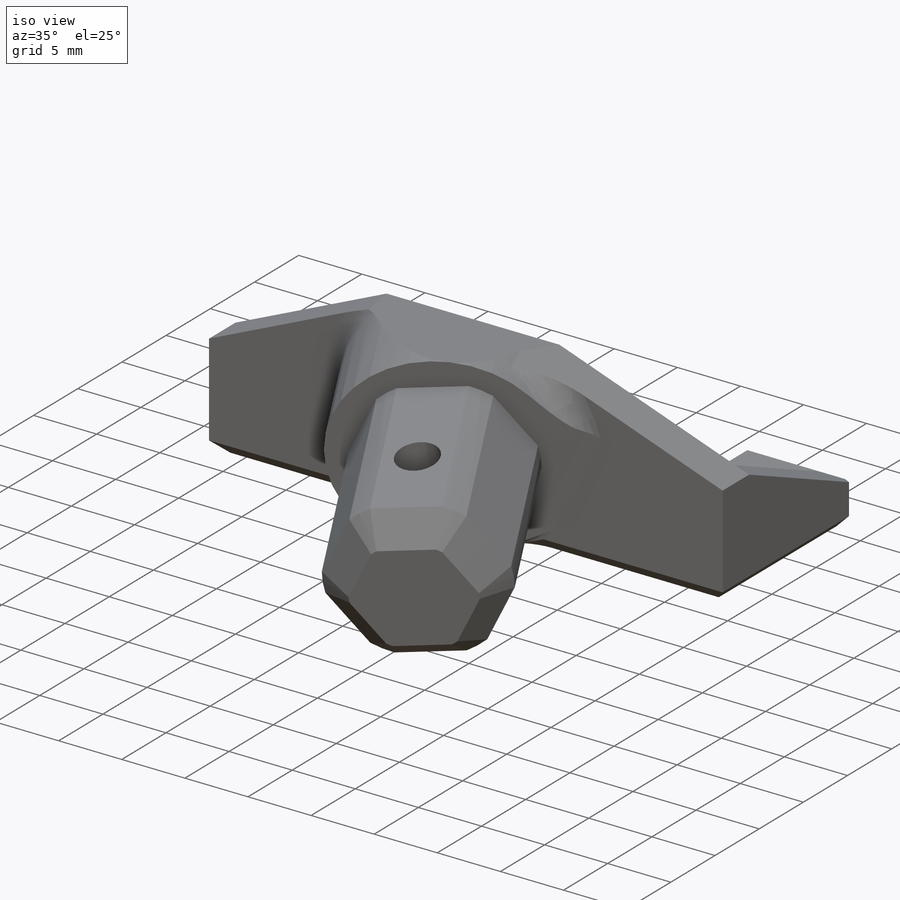
[diagram: iso view]
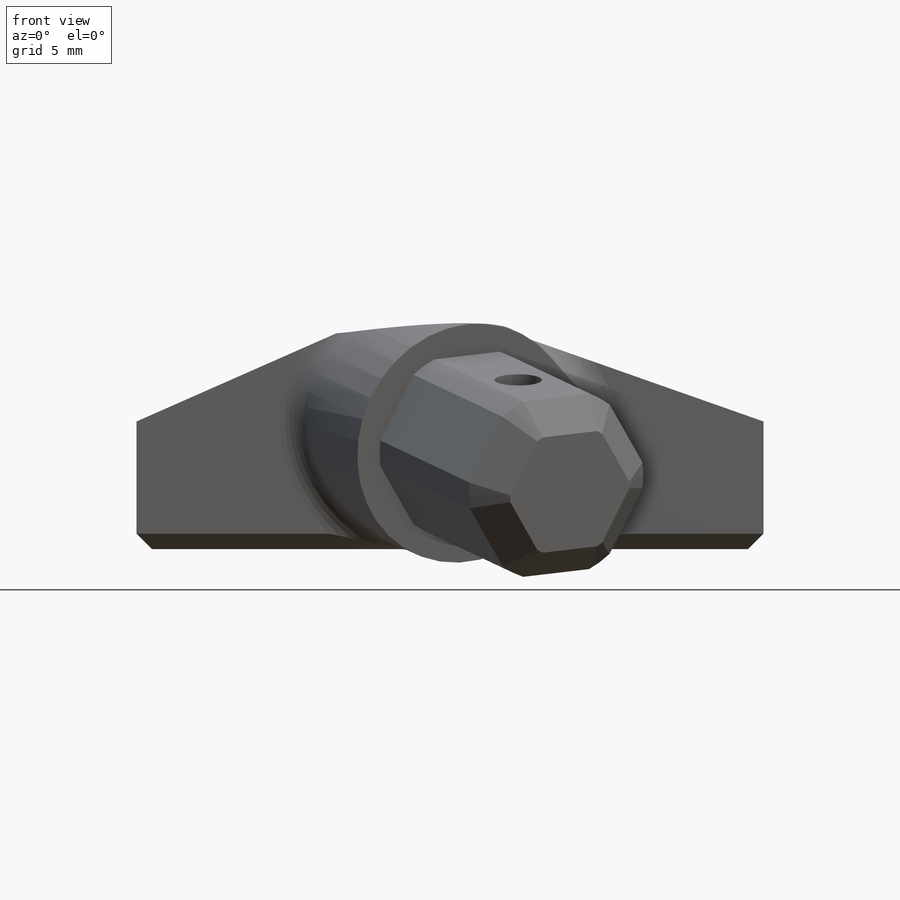
[diagram: front view]
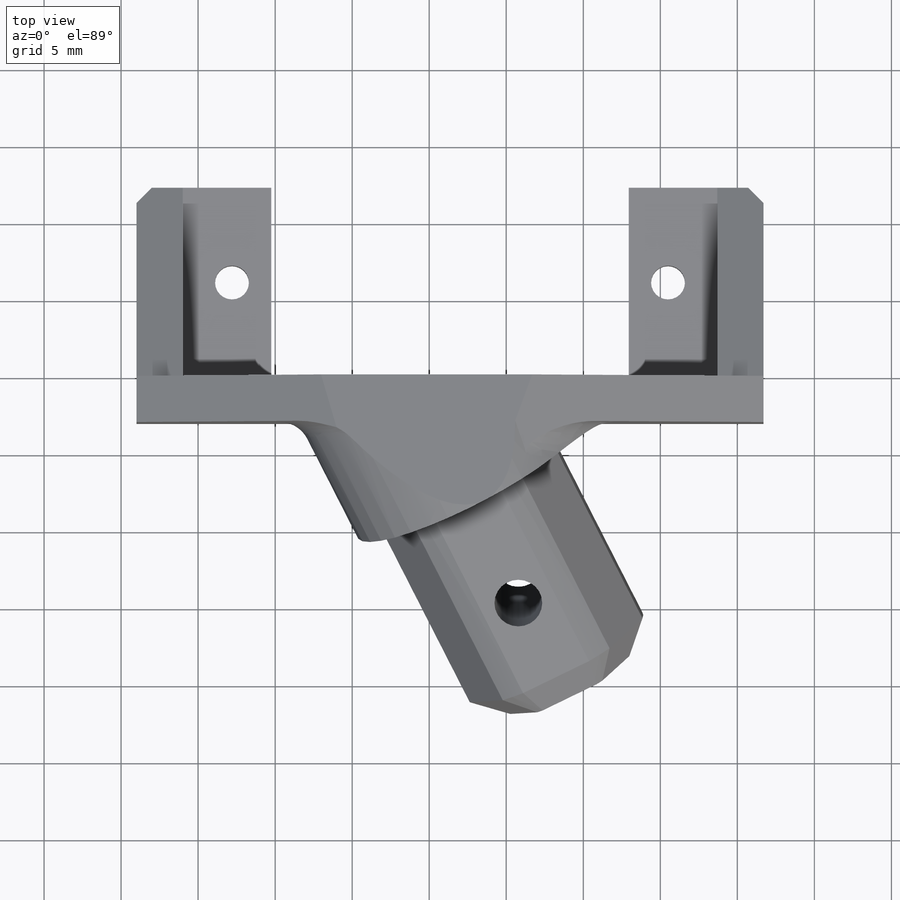
[diagram: top view]
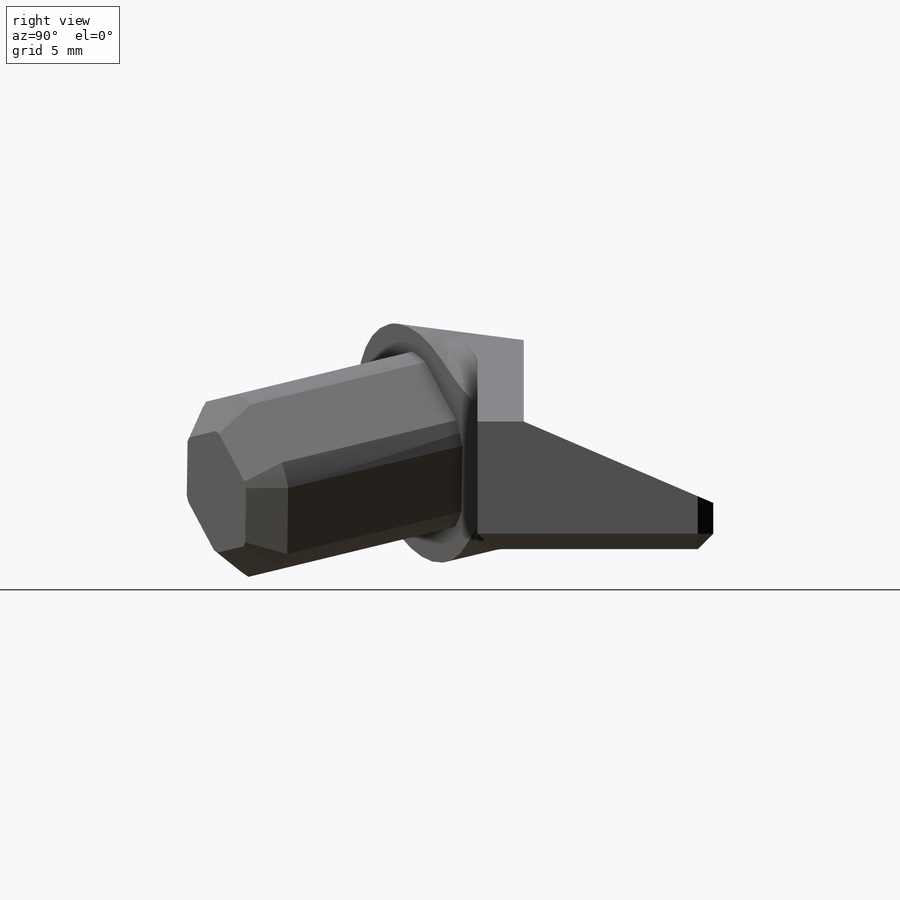
[diagram: right view]
SOLIDWORKS PART (.sldprt)
format: sldprt  version: not decoded by parser v0  size: 439,808 bytes
history: native  units: mm
features: sketch x11, extrude x7, cut_extrude x4, fillet x3, chamfer x2, material x1, plane x1 (+13 scaffold rows collapsed)
feature tree (42):
  scaffold x13  (default folders/planes/origin — collapsed)
  material  "Material <not specified>"
  sketch  "Sketch1"  dims[D2=3.0mm D3=4.0mm D4=4.0mm D5=~2.134115mm D1=0.0mm]
  extrude  "Boss-Extrude1"  Depth=3mm
  plane  "Plane1"
  sketch  "Sketch3"  dims[D1=15.88mm]
  extrude  "Boss-Extrude3"  Depth=15mm
  sketch  "Sketch5"  dims[D1=13.568mm]
  cut_extrude  "Cut-Extrude1"  [1 undecoded]
  sketch  "Sketch6"  dims[D1=~1.163325mm]
  extrude  "Boss-Extrude4"  [1 undecoded]
  sketch  "Sketch2"  dims[D1=~1.819306mm]
  extrude  "Boss-Extrude2"  [1 undecoded]
  sketch  "Sketch7"  dims[D1=12.3mm]
  extrude  "Boss-Extrude5"  Depth=3mm
  sketch  "Sketch8"  dims[D1=12.3mm]
  extrude  "Boss-Extrude6"  Depth=3mm
  sketch  "Sketch9"  dims[c1.D1=2.0mm c1.D2=7.284mm c2.D1=~12.859282mm]
  cut_extrude  "Cut-Extrude2"  [1 undecoded]
  fillet  "Fillet1"  Radius=2mm
  fillet  "Fillet2"  Radius=0.5mm
  fillet  "Fillet3"  Radius=3mm
  sketch  "Sketch10"  dims[D1=12.64mm D2=11.7mm]
  extrude  "Boss-Extrude7"  Depth=15mm
  chamfer  "Chamfer1"  Distance=2mm Angle=45deg
  sketch  "Sketch11"  dims[D1=3.1mm D2=7.5mm]
  cut_extrude  "Cut-Extrude3"  [1 undecoded]
  sketch  "Sketch12"  dims[D1=2.2mm]
  cut_extrude  "Cut-Extrude4"  [1 undecoded]
  chamfer  "Chamfer2"  Distance=1mm Angle=45deg
decode coverage: 21 of 27 modeling features carry decoded parameters
note: ~ marks probable driven/reference dimensions
note: 6 parameter values undecoded
summary: no parameter record found for 6 features
note: suppression state not decoded; provenance and decode notes live in map.json
